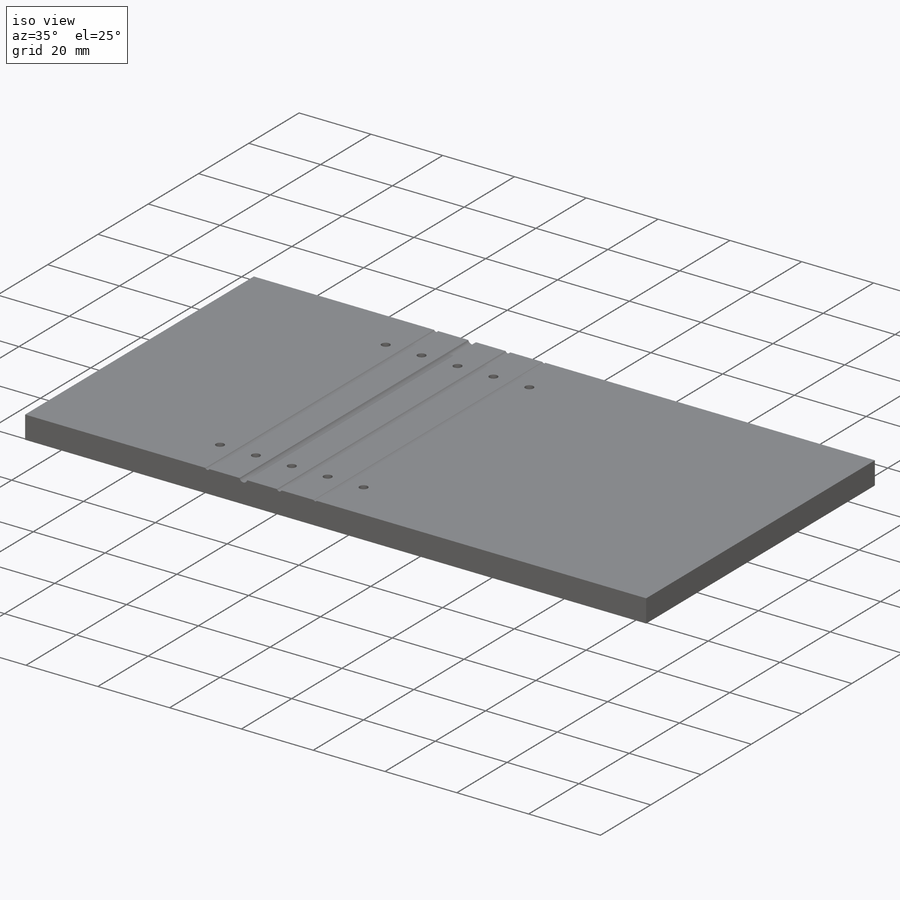
[diagram: iso view]
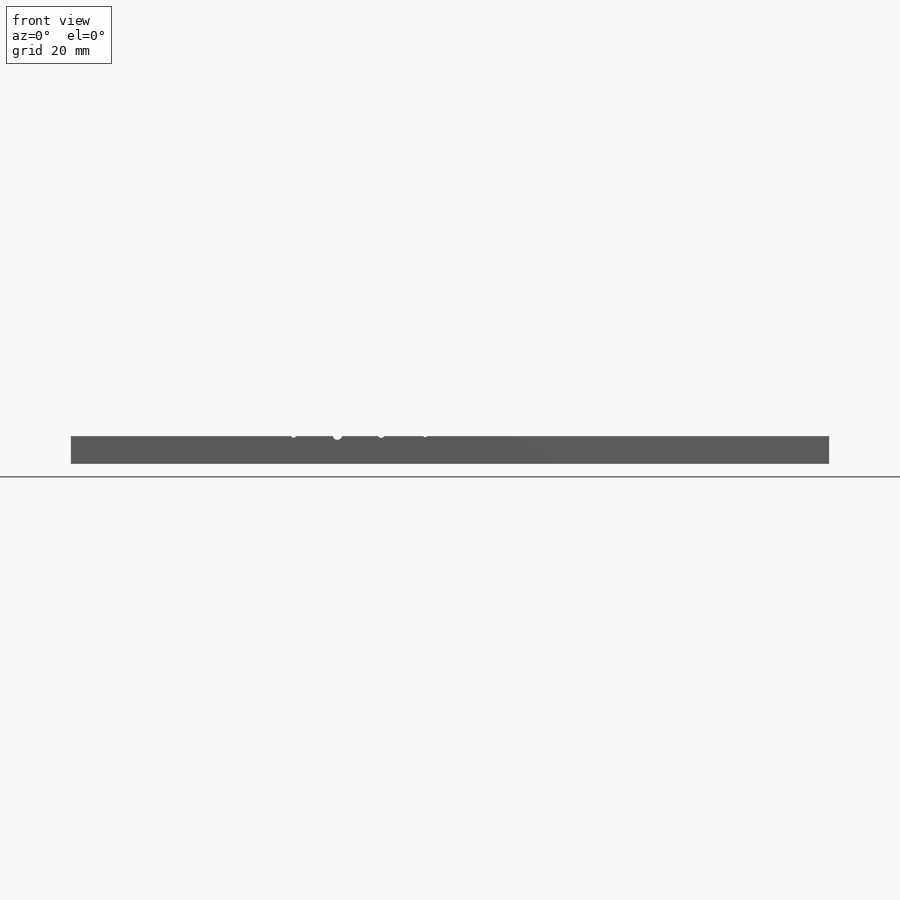
[diagram: front view]
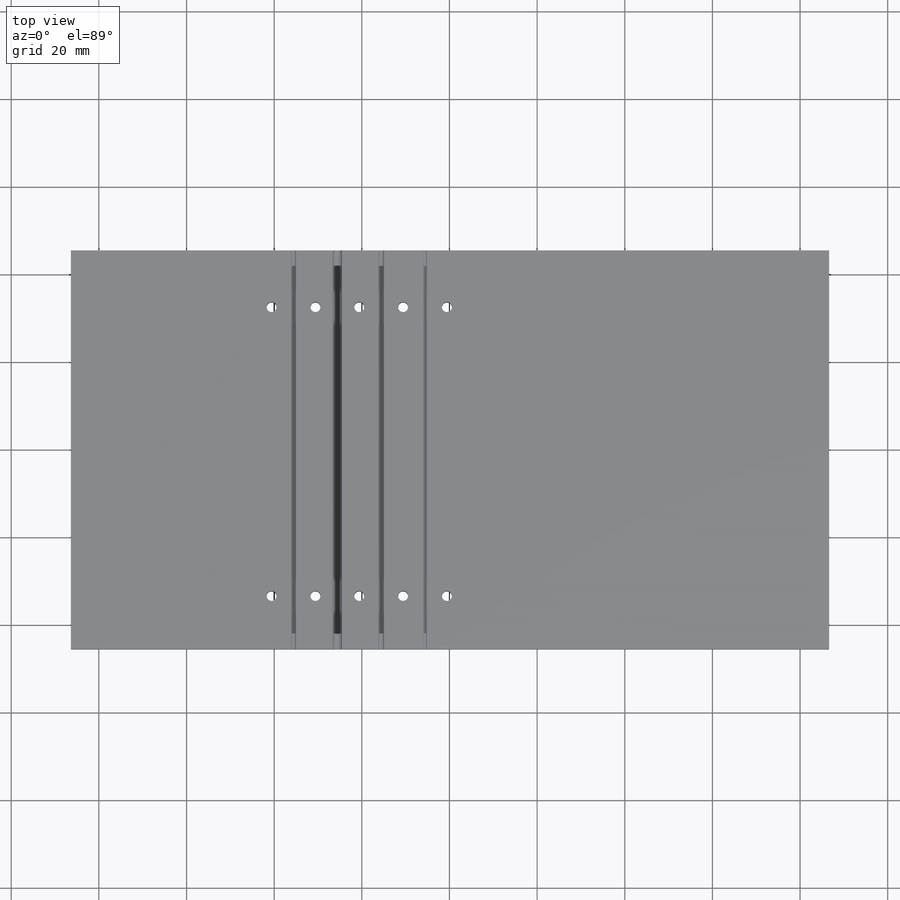
[diagram: top view]
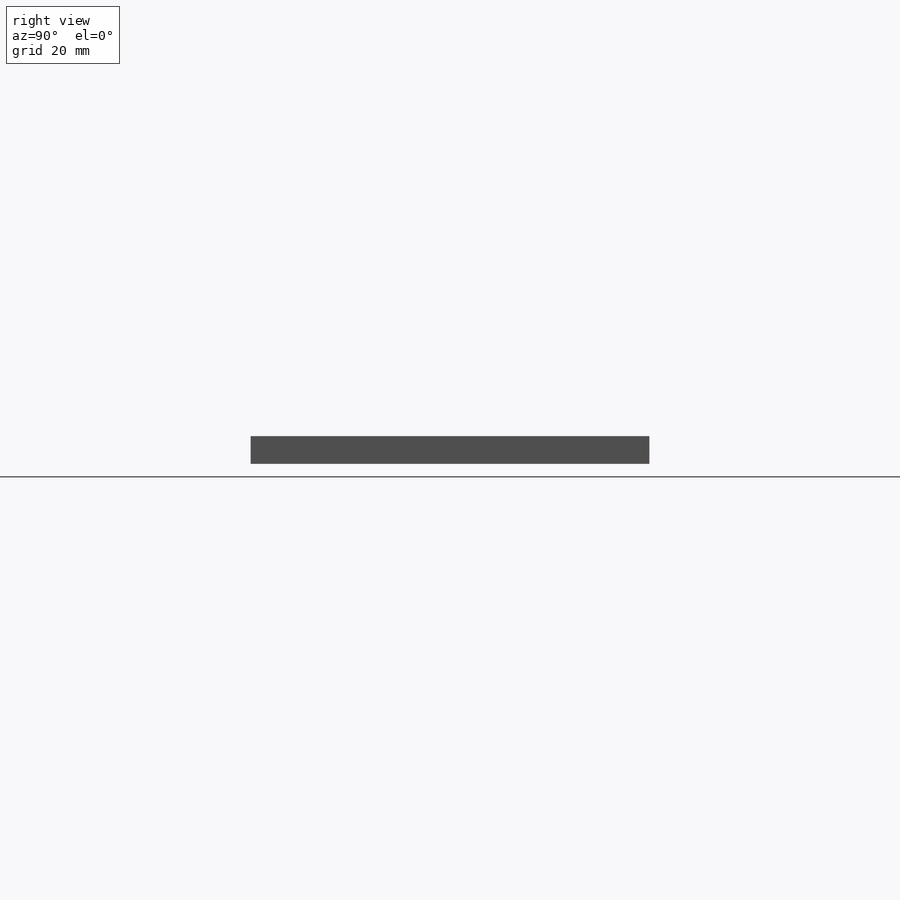
[diagram: right view]
SOLIDWORKS PART (.sldprt)
format: sldprt  version: not decoded by parser v0  size: 281,088 bytes
history: native  units: mm
features: thread x10, sketch x5, material x1, extrude x1, cut_extrude x1, hole x1 (+13 scaffold rows collapsed)
feature tree (32):
  scaffold x13  (default folders/planes/origin — collapsed)
  material  "Material <not specified>"
  sketch  "Sketch1"  dims[D1=91.0mm D2=173.0mm]
  extrude  "Boss-Extrude1"  Depth=6.35mm
  sketch  "Sketch2"  dims[c1.D1=1.2446mm c1.D3=2.2mm c1.D6=1.3716mm c1.D7=1.0mm c1.D2=0.1mm c2.D3=~1.202942mm c2.D2=0.25mm c2.D4=10.0mm c2.D5=50.8mm c2.D8=10.0mm c2.D9=10.0mm]
  cut_extrude  "Cut-Extrude1"  [1 undecoded]
  sketch  "Sketch3"  dims[D1=20.0mm D2=5.0mm D3=5.0mm D4=5.0mm]
  hole  "#4-40 Tapped Hole1"  Diameter=2.2606mm Depth=6.35mm
  sketch  "Sketch5"
  sketch  "Sketch4"  dims[hole-wizard template sketch: 60 standard entries collapsed; hole parameters kept: c18.Thru Tap Drill Depth=6.35mm]
  thread  "Hole Thread1"  Diameter=2.8448mm  [1 undecoded]
  thread  "Hole Thread2"  Diameter=2.8448mm  [1 undecoded]
  thread  "Hole Thread3"  Diameter=2.8448mm  [1 undecoded]
  thread  "Hole Thread4"  Diameter=2.8448mm  [1 undecoded]
  thread  "Hole Thread5"  Diameter=2.8448mm  [1 undecoded]
  thread  "Hole Thread6"  Diameter=2.8448mm  [1 undecoded]
  thread  "Hole Thread7"  Diameter=2.8448mm  [1 undecoded]
  thread  "Hole Thread8"  Diameter=2.8448mm  [1 undecoded]
  thread  "Hole Thread9"  Diameter=2.8448mm  [1 undecoded]
  thread  "Hole Thread10"  Diameter=2.8448mm  [1 undecoded]
decode coverage: 16 of 18 modeling features carry decoded parameters
note: ~ marks probable driven/reference dimensions
note: 11 parameter values undecoded
note: suppression state not decoded; provenance and decode notes live in map.json
